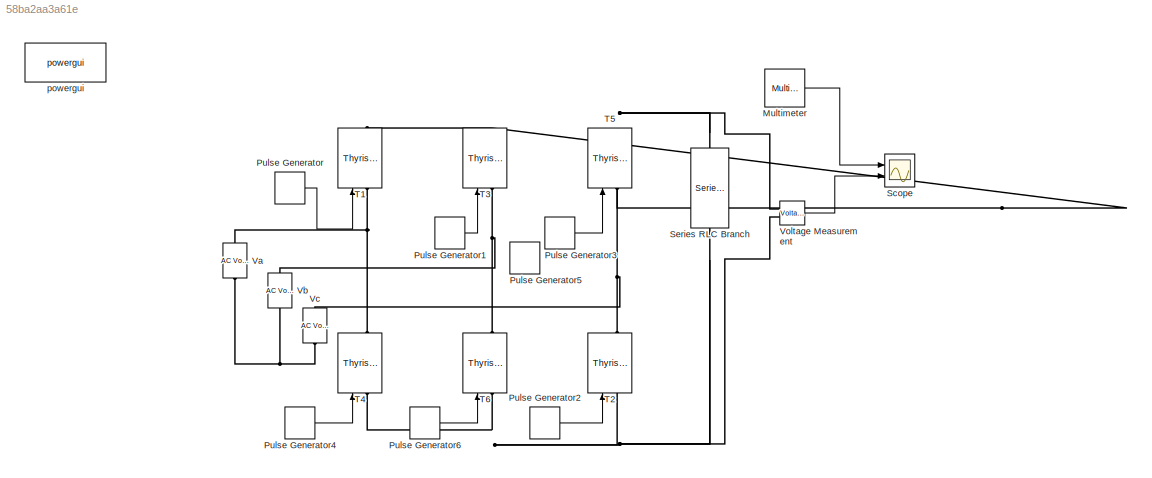
MODEL slx_58ba2aa3a61e
KIND model
CONFIG AbsTol = auto
CONFIG EnableMultiTasking = off
CONFIG FixedStep = auto
CONFIG MaxStep = 1e-4
CONFIG MinStep = auto
CONFIG RelTol = 1e-3
CONFIG SampleTimeConstraint = Unconstrained
CONFIG SolverName = VariableStepAuto
CONFIG StartTime = 0.0
CONFIG StopTime = 0.1
BLOCK [Reference] Multimeter  REF=spsMultimeterLib/Multimeter
  Ports = [0, 1]
  SourceBlock = spsMultimeterLib/Multimeter
  SourceProductBaseCode = PS
  SourceType = MultimeterPSB
BLOCK [DiscretePulseGenerator] Pulse Generator
  Period = 1/50
  PhaseDelay = 60*0.02/360
  Ports = [0, 1]
  PulseType = Time based
  PulseWidth = 5
BLOCK [DiscretePulseGenerator] Pulse Generator1
  Period = 1/50
  PhaseDelay = 180*0.02/360
  Ports = [0, 1]
  PulseType = Time based
  PulseWidth = 5
BLOCK [DiscretePulseGenerator] Pulse Generator2
  Period = 1/50
  PhaseDelay = 120*0.02/360
  Ports = [0, 1]
  PulseType = Time based
  PulseWidth = 5
BLOCK [DiscretePulseGenerator] Pulse Generator3
  Period = 1/50
  PhaseDelay = 300*0.02/360
  Ports = [0, 1]
  PulseType = Time based
  PulseWidth = 5
BLOCK [DiscretePulseGenerator] Pulse Generator4
  Period = 1/50
  PhaseDelay = 240*0.02/360
  Ports = [0, 1]
  PulseType = Time based
  PulseWidth = 5
BLOCK [DiscretePulseGenerator] Pulse Generator5
  Period = 1/50
  PhaseDelay = 300*0.02/360
  Ports = [0, 1]
  PulseType = Time based
  PulseWidth = 5
BLOCK [DiscretePulseGenerator] Pulse Generator6
  Period = 1/50
  PhaseDelay = 360*0.02/360
  Ports = [0, 1]
  PulseType = Time based
  PulseWidth = 5
BLOCK [Scope] Scope
  Floating = off
  NumInputPorts = 2
  Ports = [2]
  ScopeSpecificationString = Simulink.scopes.TimeScopeBlockCfg('CurrentConfiguration', extmgr.ConfigurationSet(extmgr.Configuration('Core','General UI',true),extmgr.Configuration('Core','Source UI',true),extmgr.Configuration('Sources','WiredSimulink',true),extmgr.Configuration('Visuals','Time Domain',true,'SerializedDisplays',{struct('MinYLimReal','-124.99315','MaxYLimReal','124.99315','YLabelReal','','MinYLimMag',' 0.00000',...<+2092ch>
BLOCK [Reference] Series RLC Branch  REF=spsSeriesRLCBranchLib/Series RLC Branch
  NameLocation = left
  Ports = [0, 0, 0, 0, 0, 1, 1]
  SourceBlock = spsSeriesRLCBranchLib/Series RLC Branch
  SourceProductBaseCode = PS
  SourceType = Series RLC Branch
BLOCK [Reference] T1  REF=spsThyristorLib/Thyristor
  NameLocation = right
  Ports = [1, 1, 0, 0, 0, 1, 1]
  SourceBlock = spsThyristorLib/Thyristor
  SourceProductBaseCode = PS
  SourceType = Thyristor
BLOCK [Reference] T2  REF=spsThyristorLib/Thyristor
  NameLocation = right
  Ports = [1, 1, 0, 0, 0, 1, 1]
  SourceBlock = spsThyristorLib/Thyristor
  SourceProductBaseCode = PS
  SourceType = Thyristor
BLOCK [Reference] T3  REF=spsThyristorLib/Thyristor
  NameLocation = right
  Ports = [1, 1, 0, 0, 0, 1, 1]
  SourceBlock = spsThyristorLib/Thyristor
  SourceProductBaseCode = PS
  SourceType = Thyristor
BLOCK [Reference] T4  REF=spsThyristorLib/Thyristor
  NameLocation = right
  Ports = [1, 1, 0, 0, 0, 1, 1]
  SourceBlock = spsThyristorLib/Thyristor
  SourceProductBaseCode = PS
  SourceType = Thyristor
BLOCK [Reference] T5  REF=spsThyristorLib/Thyristor
  NameLocation = right
  Ports = [1, 1, 0, 0, 0, 1, 1]
  SourceBlock = spsThyristorLib/Thyristor
  SourceProductBaseCode = PS
  SourceType = Thyristor
BLOCK [Reference] T6  REF=spsThyristorLib/Thyristor
  NameLocation = right
  Ports = [1, 1, 0, 0, 0, 1, 1]
  SourceBlock = spsThyristorLib/Thyristor
  SourceProductBaseCode = PS
  SourceType = Thyristor
BLOCK [Reference] Va  REF=spsACVoltageSourceLib/AC Voltage Source
  Ports = [0, 0, 0, 0, 0, 1, 1]
  SourceBlock = spsACVoltageSourceLib/AC Voltage Source
  SourceProductBaseCode = PS
  SourceType = AC Voltage Source
BLOCK [Reference] Vb  REF=spsACVoltageSourceLib/AC Voltage Source
  Ports = [0, 0, 0, 0, 0, 1, 1]
  SourceBlock = spsACVoltageSourceLib/AC Voltage Source
  SourceProductBaseCode = PS
  SourceType = AC Voltage Source
BLOCK [Reference] Vc  REF=spsACVoltageSourceLib/AC Voltage Source
  Ports = [0, 0, 0, 0, 0, 1, 1]
  SourceBlock = spsACVoltageSourceLib/AC Voltage Source
  SourceProductBaseCode = PS
  SourceType = AC Voltage Source
BLOCK [Reference] Voltage Measurement  REF=spsVoltageMeasurementLib/Voltage Measurement
  Ports = [0, 1, 0, 0, 0, 2]
  SourceBlock = spsVoltageMeasurementLib/Voltage Measurement
  SourceProductBaseCode = PS
  SourceType = Voltage Measurement
  UserDataPersistent = on
BLOCK [Reference] powergui  REF=spspowerguiLib/powergui
  Ports = []
  Priority = 1
  SourceBlock = spspowerguiLib/powergui
  SourceProductBaseCode = PS
  SourceType = PSB option menu block
LINE Multimeter:1 -> Scope:1
LINE Pulse Generator1:1 -> T3:1
LINE Pulse Generator2:1 -> T2:1
LINE Pulse Generator3:1 -> T5:1
LINE Pulse Generator4:1 -> T4:1
LINE Pulse Generator6:1 -> T6:1
LINE Pulse Generator:1 -> T1:1
LINE Voltage Measurement:1 -> Scope:2
PNET net1: Series RLC Branch:LConn1 -- T1:RConn1 -- T3:RConn1 -- T5:RConn1 -- Voltage Measurement:LConn1
PNET net2: Series RLC Branch:RConn1 -- T2:LConn1 -- T4:LConn1 -- T6:LConn1 -- Voltage Measurement:LConn2
PNET net3: T1:LConn1 -- T4:RConn1 -- Va:RConn1
PNET net4: T2:RConn1 -- T5:LConn1 -- Vc:RConn1
PNET net5: T3:LConn1 -- T6:RConn1 -- Vb:RConn1
PNET net6: Va:LConn1 -- Vb:LConn1 -- Vc:LConn1
note: PNET lines group multi-terminal physical nets as a canonical sorted terminal list (undirected conserving connections); 2-terminal nets keep the pairwise PLINE form
